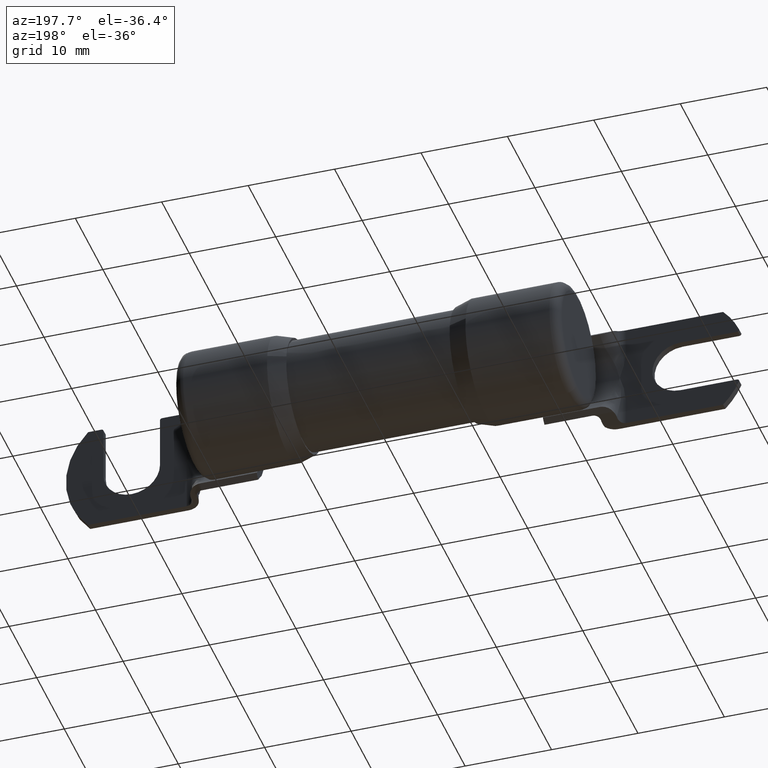
[diagram: clean part render]
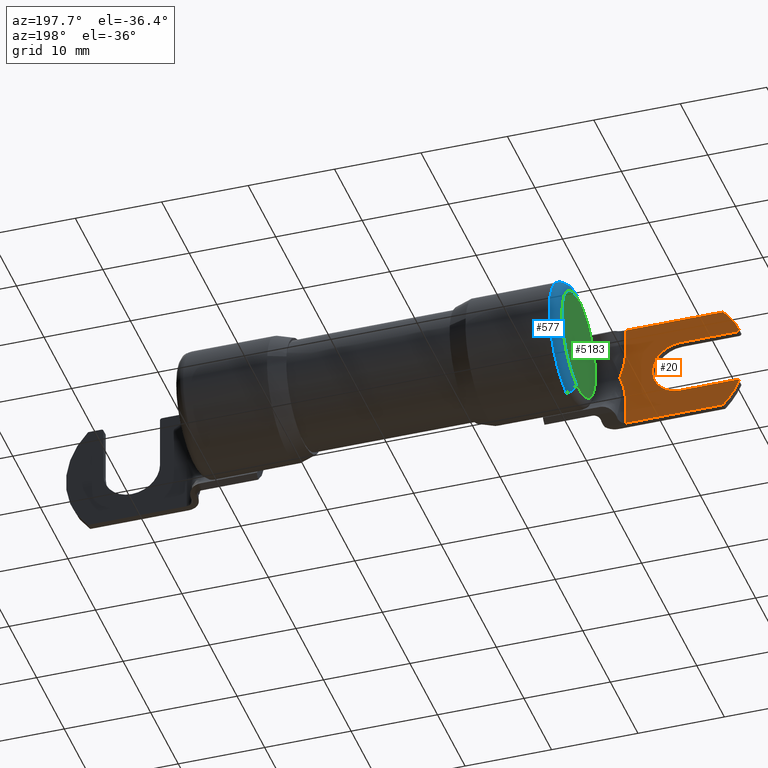
[diagram: same view with three faces highlighted in distinct colors, each labeled with its STEP entity id]
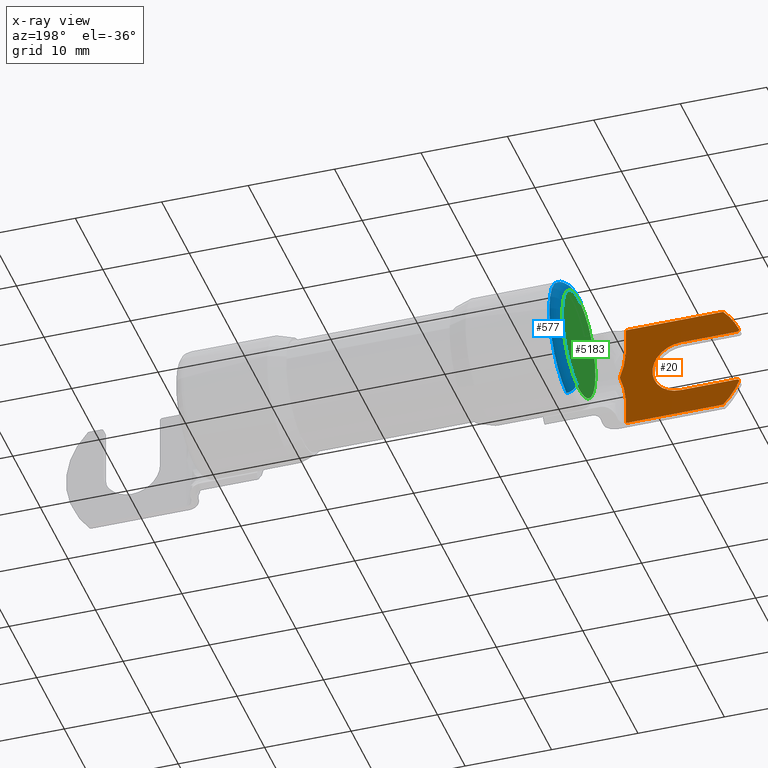
[diagram: x-ray of the same camera — body ghosted, the three highlighted faces saturated]
A machine part, auxiliary view with three faces highlighted in distinct colors.
The next image is the same camera in x-ray (body ghosted, the three faces saturated) — at least one of them is partly hidden behind the body in this view.
Their STEP definitions:

[orange] entity #20 — the highlighted planar face has unit normal (-0, 1, 0).
#20 = ADVANCED_FACE ( 'NONE', ( #624 ), #1524, .T. ) ;
#29 = CARTESIAN_POINT ( 'NONE',  ( -1.000426483201234200, -0.2874999999999999800, -0.1221132217587583600 ) ) ;
#70 = EDGE_CURVE ( 'NONE', #2499, #3233, #1547, .T. ) ;
#212 = EDGE_LOOP ( 'NONE', ( #4966, #2019, #4444, #638, #4651, #3736, #4579, #4791, #5128, #2356, #4437, #5175, #2362 ) ) ;
#223 = AXIS2_PLACEMENT_3D ( 'NONE', #5341, #1298, #2637 ) ;
#241 = DIRECTION ( 'NONE',  ( 0.0000000000000000000, 1.000000000000000000, -0.0000000000000000000 ) ) ;
#357 = VERTEX_POINT ( 'NONE', #2673 ) ;
#389 = EDGE_CURVE ( 'NONE', #4244, #2722, #3786, .T. ) ;
#420 = EDGE_CURVE ( 'NONE', #2722, #5342, #5417, .T. ) ;
#434 = LINE ( 'NONE', #5374, #2698 ) ;
#469 = CARTESIAN_POINT ( 'NONE',  ( -1.000426483201234200, -0.2874999999999999800, 0.1221132217587574400 ) ) ;
#470 = CARTESIAN_POINT ( 'NONE',  ( -1.507000000000000100, -0.2874999999999999800, -0.1385000000000003700 ) ) ;
#559 = EDGE_CURVE ( 'NONE', #3202, #357, #3378, .T. ) ;
#564 = LINE ( 'NONE', #2340, #5154 ) ;
#624 = FACE_OUTER_BOUND ( 'NONE', #212, .T. ) ;
#635 = EDGE_CURVE ( 'NONE', #3924, #2898, #2335, .T. ) ;
#638 = ORIENTED_EDGE ( 'NONE', *, *, #2831, .F. ) ;
#689 = EDGE_CURVE ( 'NONE', #5342, #5614, #5499, .T. ) ;
#736 = VERTEX_POINT ( 'NONE', #3092 ) ;
#763 = AXIS2_PLACEMENT_3D ( 'NONE', #1143, #2933, #4158 ) ;
#778 = EDGE_CURVE ( 'NONE', #2898, #736, #1141, .T. ) ;
#886 = VERTEX_POINT ( 'NONE', #1957 ) ;
#933 = DIRECTION ( 'NONE',  ( 0.0000000000000000000, 0.0000000000000000000, 1.000000000000000000 ) ) ;
#1141 = B_SPLINE_CURVE_WITH_KNOTS ( 'NONE', 3,
 ( #4572, #4855, #4489, #4927, #5368, #29 ),
 .UNSPECIFIED., .F., .F.,
 ( 4, 2, 4 ),
 ( -1.614323401268651500E-005, 0.001581219791854343000, 0.003178582817721372500 ),
 .UNSPECIFIED. ) ;
#1143 = CARTESIAN_POINT ( 'NONE',  ( -1.516999999999999900, -0.2874999999999999800, -3.415878134535514400E-016 ) ) ;
#1153 = CARTESIAN_POINT ( 'NONE',  ( -1.184708335945663600, -0.2874999999999999800, -3.415878134535514400E-016 ) ) ;
#1188 = CARTESIAN_POINT ( 'NONE',  ( -1.000426483201234200, -0.2874999999999999800, 0.2499999999999993600 ) ) ;
#1259 = DIRECTION ( 'NONE',  ( 1.000000000000000000, 0.0000000000000000000, -6.277224250147663200E-016 ) ) ;
#1298 = DIRECTION ( 'NONE',  ( -0.0000000000000000000, 1.000000000000000000, 0.0000000000000000000 ) ) ;
#1356 = LINE ( 'NONE', #1416, #3590 ) ;
#1374 = DIRECTION ( 'NONE',  ( 0.0000000000000000000, 0.0000000000000000000, 1.000000000000000000 ) ) ;
#1403 = DIRECTION ( 'NONE',  ( 0.0000000000000000000, 1.000000000000000000, 0.0000000000000000000 ) ) ;
#1416 = CARTESIAN_POINT ( 'NONE',  ( -1.516999999999999900, -0.2874999999999999800, 0.1284999999999995900 ) ) ;
#1524 = PLANE ( 'NONE',  #763 ) ;
#1547 = CIRCLE ( 'NONE', #3759, 0.3599999999999999900 ) ;
#1573 = CARTESIAN_POINT ( 'NONE',  ( -1.516999999999999900, -0.2874999999999999800, 0.2499999999999996700 ) ) ;
#1742 = CARTESIAN_POINT ( 'NONE',  ( -1.000426483201234200, -0.2874999999999999800, -0.2500000000000003900 ) ) ;
#1761 = VECTOR ( 'NONE', #3221, 39.37007874015748100 ) ;
#1775 = CARTESIAN_POINT ( 'NONE',  ( -1.443745012885435900, -0.2874999999999999800, 0.2499999999999996100 ) ) ;
#1800 = AXIS2_PLACEMENT_3D ( 'NONE', #4068, #1403, #4508 ) ;
#1837 = DIRECTION ( 'NONE',  ( 1.000000000000000000, 0.0000000000000000000, 0.0000000000000000000 ) ) ;
#1957 = CARTESIAN_POINT ( 'NONE',  ( -1.250000000000000000, -0.2874999999999999800, 0.1284999999999995900 ) ) ;
#2019 = ORIENTED_EDGE ( 'NONE', *, *, #4862, .T. ) ;
#2258 = AXIS2_PLACEMENT_3D ( 'NONE', #470, #3614, #933 ) ;
#2335 = B_SPLINE_CURVE_WITH_KNOTS ( 'NONE', 3,
 ( #5173, #5626, #3304, #2616, #3060, #5681 ),
 .UNSPECIFIED., .F., .F.,
 ( 4, 2, 4 ),
 ( 0.0000000000000000000, 0.001591815120560126000, 0.003183630241120252000 ),
 .UNSPECIFIED. ) ;
#2339 = EDGE_CURVE ( 'NONE', #736, #2724, #434, .T. ) ;
#2340 = CARTESIAN_POINT ( 'NONE',  ( -1.516999999999999900, -0.2874999999999999800, -0.2500000000000003300 ) ) ;
#2356 = ORIENTED_EDGE ( 'NONE', *, *, #635, .T. ) ;
#2362 = ORIENTED_EDGE ( 'NONE', *, *, #4383, .T. ) ;
#2499 = VERTEX_POINT ( 'NONE', #2852 ) ;
#2616 = CARTESIAN_POINT ( 'NONE',  ( -0.9865094609275538700, -0.2874999999999999800, 0.03970807071071969000 ) ) ;
#2637 = DIRECTION ( 'NONE',  ( 0.0000000000000000000, 0.0000000000000000000, 1.000000000000000000 ) ) ;
#2667 = EDGE_CURVE ( 'NONE', #4244, #886, #1356, .T. ) ;
#2673 = CARTESIAN_POINT ( 'NONE',  ( -1.507000000000000100, -0.2874999999999999800, -0.1285000000000003900 ) ) ;
#2698 = VECTOR ( 'NONE', #3200, 39.37007874015748100 ) ;
#2722 = VERTEX_POINT ( 'NONE', #4864 ) ;
#2724 = VERTEX_POINT ( 'NONE', #1742 ) ;
#2776 = CARTESIAN_POINT ( 'NONE',  ( -1.000426483201234200, -0.2874999999999999800, -4.587480136964391800E-016 ) ) ;
#2814 = DIRECTION ( 'NONE',  ( -1.000000000000000000, -0.0000000000000000000, -0.0000000000000000000 ) ) ;
#2831 = EDGE_CURVE ( 'NONE', #886, #3202, #5337, .T. ) ;
#2852 = CARTESIAN_POINT ( 'NONE',  ( -1.516999999999999900, -0.2874999999999999800, -0.1385000000000003500 ) ) ;
#2898 = VERTEX_POINT ( 'NONE', #5608 ) ;
#2933 = DIRECTION ( 'NONE',  ( -0.0000000000000000000, 1.000000000000000000, 0.0000000000000000000 ) ) ;
#2970 = CARTESIAN_POINT ( 'NONE',  ( -1.250000000000000000, -0.2874999999999999800, -0.1285000000000004200 ) ) ;
#3024 = CARTESIAN_POINT ( 'NONE',  ( -1.443745012885435900, -0.2874999999999999800, -0.2500000000000003900 ) ) ;
#3060 = CARTESIAN_POINT ( 'NONE',  ( -0.9798567383545211400, -0.2874999999999837100, 0.01973260399335439300 ) ) ;
#3092 = CARTESIAN_POINT ( 'NONE',  ( -1.000426483201234200, -0.2874999999999999800, -0.1221132217587583600 ) ) ;
#3200 = DIRECTION ( 'NONE',  ( -2.731847993664265200E-016, 0.0000000000000000000, -1.000000000000000000 ) ) ;
#3202 = VERTEX_POINT ( 'NONE', #5269 ) ;
#3221 = DIRECTION ( 'NONE',  ( -2.731847993664265200E-016, 0.0000000000000000000, -1.000000000000000000 ) ) ;
#3233 = VERTEX_POINT ( 'NONE', #3024 ) ;
#3240 = AXIS2_PLACEMENT_3D ( 'NONE', #1153, #241, #5071 ) ;
#3304 = CARTESIAN_POINT ( 'NONE',  ( -0.9967407581547056400, -0.2875000000000000300, 0.08042341983053588600 ) ) ;
#3378 = LINE ( 'NONE', #2970, #4542 ) ;
#3590 = VECTOR ( 'NONE', #1837, 39.37007874015748100 ) ;
#3594 = DIRECTION ( 'NONE',  ( -0.0000000000000000000, -1.000000000000000000, -0.0000000000000000000 ) ) ;
#3614 = DIRECTION ( 'NONE',  ( -0.0000000000000000000, 1.000000000000000000, 0.0000000000000000000 ) ) ;
#3736 = ORIENTED_EDGE ( 'NONE', *, *, #389, .T. ) ;
#3759 = AXIS2_PLACEMENT_3D ( 'NONE', #4411, #3594, #1374 ) ;
#3786 = CIRCLE ( 'NONE', #223, 0.009999999999999995000 ) ;
#3924 = VERTEX_POINT ( 'NONE', #469 ) ;
#4066 = CARTESIAN_POINT ( 'NONE',  ( -1.507000000000000100, -0.2874999999999999800, 0.1284999999999995900 ) ) ;
#4068 = CARTESIAN_POINT ( 'NONE',  ( -1.250000000000000000, -0.2874999999999999800, -4.098840132951580200E-016 ) ) ;
#4135 = LINE ( 'NONE', #2776, #1761 ) ;
#4158 = DIRECTION ( 'NONE',  ( 0.0000000000000000000, -0.0000000000000000000, 1.000000000000000000 ) ) ;
#4244 = VERTEX_POINT ( 'NONE', #4066 ) ;
#4302 = EDGE_CURVE ( 'NONE', #5614, #3924, #4135, .T. ) ;
#4383 = EDGE_CURVE ( 'NONE', #2724, #3233, #564, .T. ) ;
#4411 = CARTESIAN_POINT ( 'NONE',  ( -1.184708335945663600, -0.2874999999999999800, -3.415878134535514400E-016 ) ) ;
#4437 = ORIENTED_EDGE ( 'NONE', *, *, #778, .T. ) ;
#4444 = ORIENTED_EDGE ( 'NONE', *, *, #559, .F. ) ;
#4489 = CARTESIAN_POINT ( 'NONE',  ( -0.9865098776635853300, -0.2875000000000000300, -0.03970949539137056500 ) ) ;
#4508 = DIRECTION ( 'NONE',  ( 0.0000000000000000000, 0.0000000000000000000, 1.000000000000000000 ) ) ;
#4533 = CIRCLE ( 'NONE', #2258, 0.009999999999999995000 ) ;
#4542 = VECTOR ( 'NONE', #5311, 39.37007874015748100 ) ;
#4572 = CARTESIAN_POINT ( 'NONE',  ( -0.9729999999999999800, -0.2875000000000000300, -4.662405120070949200E-016 ) ) ;
#4579 = ORIENTED_EDGE ( 'NONE', *, *, #420, .T. ) ;
#4651 = ORIENTED_EDGE ( 'NONE', *, *, #2667, .F. ) ;
#4791 = ORIENTED_EDGE ( 'NONE', *, *, #689, .T. ) ;
#4855 = CARTESIAN_POINT ( 'NONE',  ( -0.9798806359355259900, -0.2874999999999999800, -0.01980137744455341300 ) ) ;
#4862 = EDGE_CURVE ( 'NONE', #2499, #357, #4533, .T. ) ;
#4864 = CARTESIAN_POINT ( 'NONE',  ( -1.516999999999999900, -0.2874999999999999800, 0.1384999999999996200 ) ) ;
#4927 = CARTESIAN_POINT ( 'NONE',  ( -0.9967408847228189700, -0.2874999999999999800, -0.08042415723592900900 ) ) ;
#4966 = ORIENTED_EDGE ( 'NONE', *, *, #70, .F. ) ;
#5071 = DIRECTION ( 'NONE',  ( 0.0000000000000000000, 0.0000000000000000000, 1.000000000000000000 ) ) ;
#5128 = ORIENTED_EDGE ( 'NONE', *, *, #4302, .T. ) ;
#5154 = VECTOR ( 'NONE', #2814, 39.37007874015748100 ) ;
#5173 = CARTESIAN_POINT ( 'NONE',  ( -1.000426483201234200, -0.2874999999999999800, 0.1221132217587574400 ) ) ;
#5175 = ORIENTED_EDGE ( 'NONE', *, *, #2339, .T. ) ;
#5269 = CARTESIAN_POINT ( 'NONE',  ( -1.250000000000000000, -0.2874999999999999800, -0.1285000000000004200 ) ) ;
#5311 = DIRECTION ( 'NONE',  ( -1.000000000000000000, 0.0000000000000000000, 1.278955053213606500E-016 ) ) ;
#5337 = CIRCLE ( 'NONE', #1800, 0.1285000000000000000 ) ;
#5341 = CARTESIAN_POINT ( 'NONE',  ( -1.507000000000000100, -0.2874999999999999800, 0.1384999999999996000 ) ) ;
#5342 = VERTEX_POINT ( 'NONE', #1775 ) ;
#5368 = CARTESIAN_POINT ( 'NONE',  ( -1.000426483201234200, -0.2875000000000000300, -0.1010313394451608900 ) ) ;
#5374 = CARTESIAN_POINT ( 'NONE',  ( -1.000426483201234200, -0.2874999999999999800, -0.2500000000000003300 ) ) ;
#5417 = CIRCLE ( 'NONE', #3240, 0.3599999999999999300 ) ;
#5499 = LINE ( 'NONE', #1573, #5639 ) ;
#5608 = CARTESIAN_POINT ( 'NONE',  ( -0.9729999999999999800, -0.2875000000000000300, -4.662405120070949200E-016 ) ) ;
#5614 = VERTEX_POINT ( 'NONE', #1188 ) ;
#5626 = CARTESIAN_POINT ( 'NONE',  ( -1.000426483201234200, -0.2874999999999999800, 0.1010309662719578400 ) ) ;
#5639 = VECTOR ( 'NONE', #1259, 39.37007874015748100 ) ;
#5681 = CARTESIAN_POINT ( 'NONE',  ( -0.9729999999999999800, -0.2875000000000000300, -4.662405120070949200E-016 ) ) ;

[blue] entity #577 — the highlighted toroidal blend (fillet) surface has major radius 6.0833 mm and minor (blend) radius 1.1049 mm.
#250 = CARTESIAN_POINT ( 'NONE',  ( -0.8774999999999999500, -0.03291220403616985200, 0.2372278162979235000 ) ) ;
#335 = CARTESIAN_POINT ( 'NONE',  ( -0.8340000000000000700, 0.03291220403616983100, -0.2372278162979235500 ) ) ;
#385 = DIRECTION ( 'NONE',  ( -0.0000000000000000000, -0.9905128029140873900, -0.1374204761426718600 ) ) ;
#426 = TOROIDAL_SURFACE ( 'NONE', #3898, 0.2394999999999999400, 0.04350000000000000400 ) ;
#446 = ORIENTED_EDGE ( 'NONE', *, *, #4712, .T. ) ;
#449 = AXIS2_PLACEMENT_3D ( 'NONE', #878, #4009, #1337 ) ;
#454 = VERTEX_POINT ( 'NONE', #2145 ) ;
#467 = AXIS2_PLACEMENT_3D ( 'NONE', #4155, #1940, #5587 ) ;
#577 = ADVANCED_FACE ( 'NONE', ( #5574 ), #426, .T. ) ;
#610 = EDGE_CURVE ( 'NONE', #2982, #1649, #5027, .T. ) ;
#698 = EDGE_CURVE ( 'NONE', #2982, #454, #3307, .T. ) ;
#833 = EDGE_LOOP ( 'NONE', ( #5194, #1492, #3800, #446 ) ) ;
#878 = CARTESIAN_POINT ( 'NONE',  ( -0.8774999999999999500, -2.314008760874636600E-019, 1.667913958704417300E-018 ) ) ;
#1128 = CIRCLE ( 'NONE', #449, 0.2394999999999996000 ) ;
#1337 = DIRECTION ( 'NONE',  ( 0.0000000000000000000, 0.1374204761426717200, -0.9905128029140872800 ) ) ;
#1492 = ORIENTED_EDGE ( 'NONE', *, *, #698, .T. ) ;
#1649 = VERTEX_POINT ( 'NONE', #250 ) ;
#1939 = CARTESIAN_POINT ( 'NONE',  ( -0.8339999999999998500, -0.03888999474837607400, 0.2803151232246863200 ) ) ;
#1940 = DIRECTION ( 'NONE',  ( -1.000000000000000000, 0.0000000000000000000, 0.0000000000000000000 ) ) ;
#2055 = CIRCLE ( 'NONE', #3443, 0.04350000000000001100 ) ;
#2145 = CARTESIAN_POINT ( 'NONE',  ( -0.8339999999999998500, 0.03888999474837603900, -0.2803151232246863200 ) ) ;
#2656 = DIRECTION ( 'NONE',  ( -1.000000000000000000, 0.0000000000000000000, 0.0000000000000000000 ) ) ;
#2685 = CARTESIAN_POINT ( 'NONE',  ( -0.8340000000000000700, 0.0000000000000000000, 3.791200677927629700E-033 ) ) ;
#2969 = CARTESIAN_POINT ( 'NONE',  ( -0.8774999999999999500, 0.03291220403616982500, -0.2372278162979235000 ) ) ;
#2982 = VERTEX_POINT ( 'NONE', #1939 ) ;
#3027 = DIRECTION ( 'NONE',  ( 0.0000000000000000000, 0.9905128029140873900, 0.1374204761426717500 ) ) ;
#3079 = DIRECTION ( 'NONE',  ( 0.0000000000000000000, 0.1374204761426718600, -0.9905128029140871600 ) ) ;
#3307 = CIRCLE ( 'NONE', #467, 0.2829999999999995900 ) ;
#3443 = AXIS2_PLACEMENT_3D ( 'NONE', #335, #3027, #5654 ) ;
#3507 = CARTESIAN_POINT ( 'NONE',  ( -0.8340000000000000700, -0.03291220403616985200, 0.2372278162979235500 ) ) ;
#3515 = EDGE_CURVE ( 'NONE', #454, #4141, #2055, .T. ) ;
#3592 = AXIS2_PLACEMENT_3D ( 'NONE', #3507, #385, #3079 ) ;
#3800 = ORIENTED_EDGE ( 'NONE', *, *, #3515, .T. ) ;
#3898 = AXIS2_PLACEMENT_3D ( 'NONE', #2685, #2656, #5270 ) ;
#4009 = DIRECTION ( 'NONE',  ( 1.000000000000000000, -0.0000000000000000000, -0.0000000000000000000 ) ) ;
#4141 = VERTEX_POINT ( 'NONE', #2969 ) ;
#4155 = CARTESIAN_POINT ( 'NONE',  ( -0.8339999999999998500, 0.0000000000000000000, 3.791200677927629700E-033 ) ) ;
#4712 = EDGE_CURVE ( 'NONE', #4141, #1649, #1128, .T. ) ;
#5027 = CIRCLE ( 'NONE', #3592, 0.04350000000000001100 ) ;
#5194 = ORIENTED_EDGE ( 'NONE', *, *, #610, .F. ) ;
#5270 = DIRECTION ( 'NONE',  ( 0.0000000000000000000, 0.1374204761426717200, -0.9905128029140872800 ) ) ;
#5574 = FACE_OUTER_BOUND ( 'NONE', #833, .T. ) ;
#5587 = DIRECTION ( 'NONE',  ( 0.0000000000000000000, 0.1374204761426717200, -0.9905128029140871600 ) ) ;
#5654 = DIRECTION ( 'NONE',  ( 0.0000000000000000000, -0.1374204761426716700, 0.9905128029140871600 ) ) ;

[green] entity #5183 — the highlighted planar face has unit normal (-1, 0, 0).
#23 = FACE_OUTER_BOUND ( 'NONE', #649, .T. ) ;
#250 = CARTESIAN_POINT ( 'NONE',  ( -0.8774999999999999500, -0.03291220403616985200, 0.2372278162979235000 ) ) ;
#449 = AXIS2_PLACEMENT_3D ( 'NONE', #878, #4009, #1337 ) ;
#525 = CARTESIAN_POINT ( 'NONE',  ( -0.8774999999999999500, -2.314008760874636600E-019, 1.667913958704417300E-018 ) ) ;
#649 = EDGE_LOOP ( 'NONE', ( #3216, #4741 ) ) ;
#878 = CARTESIAN_POINT ( 'NONE',  ( -0.8774999999999999500, -2.314008760874636600E-019, 1.667913958704417300E-018 ) ) ;
#985 = DIRECTION ( 'NONE',  ( 0.0000000000000000000, 0.1374204761426717200, -0.9905128029140872800 ) ) ;
#1128 = CIRCLE ( 'NONE', #449, 0.2394999999999996000 ) ;
#1214 = AXIS2_PLACEMENT_3D ( 'NONE', #525, #3658, #985 ) ;
#1337 = DIRECTION ( 'NONE',  ( 0.0000000000000000000, 0.1374204761426717200, -0.9905128029140872800 ) ) ;
#1628 = AXIS2_PLACEMENT_3D ( 'NONE', #4799, #2158, #5225 ) ;
#1649 = VERTEX_POINT ( 'NONE', #250 ) ;
#2158 = DIRECTION ( 'NONE',  ( -1.000000000000000000, 0.0000000000000000000, 0.0000000000000000000 ) ) ;
#2969 = CARTESIAN_POINT ( 'NONE',  ( -0.8774999999999999500, 0.03291220403616982500, -0.2372278162979235000 ) ) ;
#3216 = ORIENTED_EDGE ( 'NONE', *, *, #4712, .F. ) ;
#3606 = CIRCLE ( 'NONE', #1214, 0.2394999999999996000 ) ;
#3658 = DIRECTION ( 'NONE',  ( 1.000000000000000000, -0.0000000000000000000, -0.0000000000000000000 ) ) ;
#3917 = PLANE ( 'NONE',  #1628 ) ;
#4009 = DIRECTION ( 'NONE',  ( 1.000000000000000000, -0.0000000000000000000, -0.0000000000000000000 ) ) ;
#4141 = VERTEX_POINT ( 'NONE', #2969 ) ;
#4712 = EDGE_CURVE ( 'NONE', #4141, #1649, #1128, .T. ) ;
#4741 = ORIENTED_EDGE ( 'NONE', *, *, #5392, .F. ) ;
#4799 = CARTESIAN_POINT ( 'NONE',  ( -0.8774999999999999500, 0.0000000000000000000, 3.791200677927629700E-033 ) ) ;
#5183 = ADVANCED_FACE ( 'NONE', ( #23 ), #3917, .T. ) ;
#5225 = DIRECTION ( 'NONE',  ( 0.0000000000000000000, 0.1374204761426717200, -0.9905128029140871600 ) ) ;
#5392 = EDGE_CURVE ( 'NONE', #1649, #4141, #3606, .T. ) ;